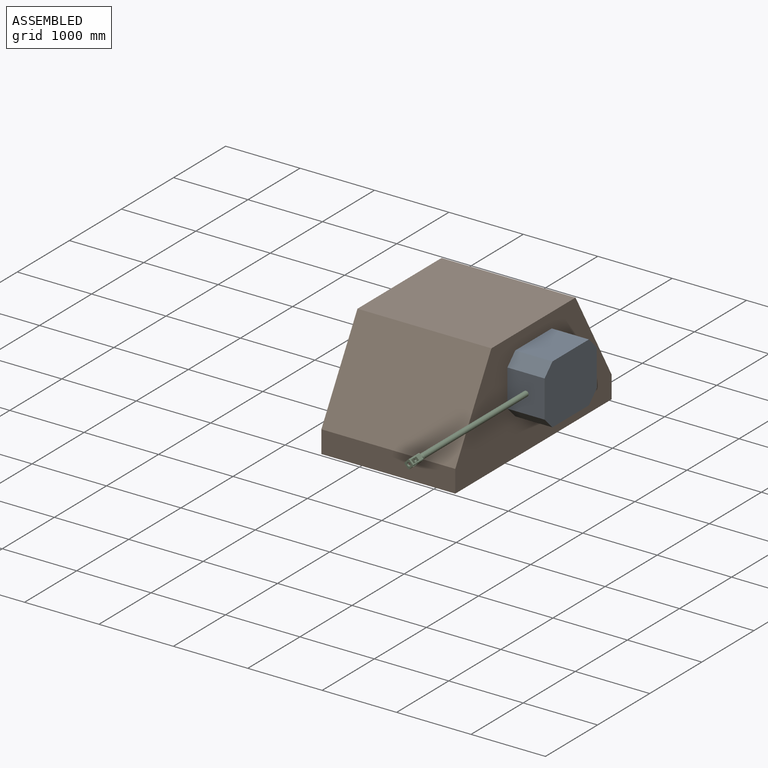
[diagram: assembled view]
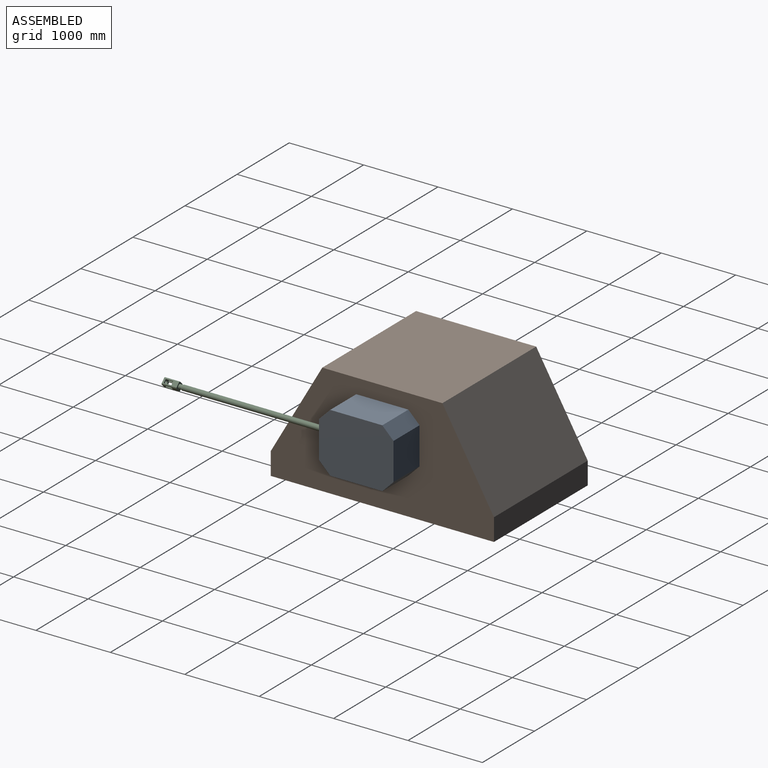
[diagram: assembled view, second angle]
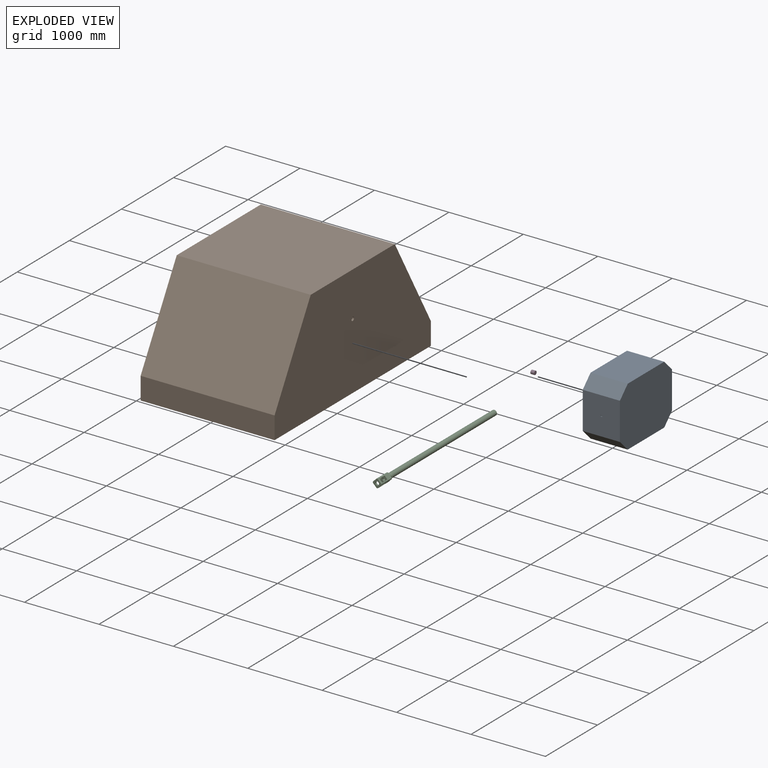
[diagram: exploded view]
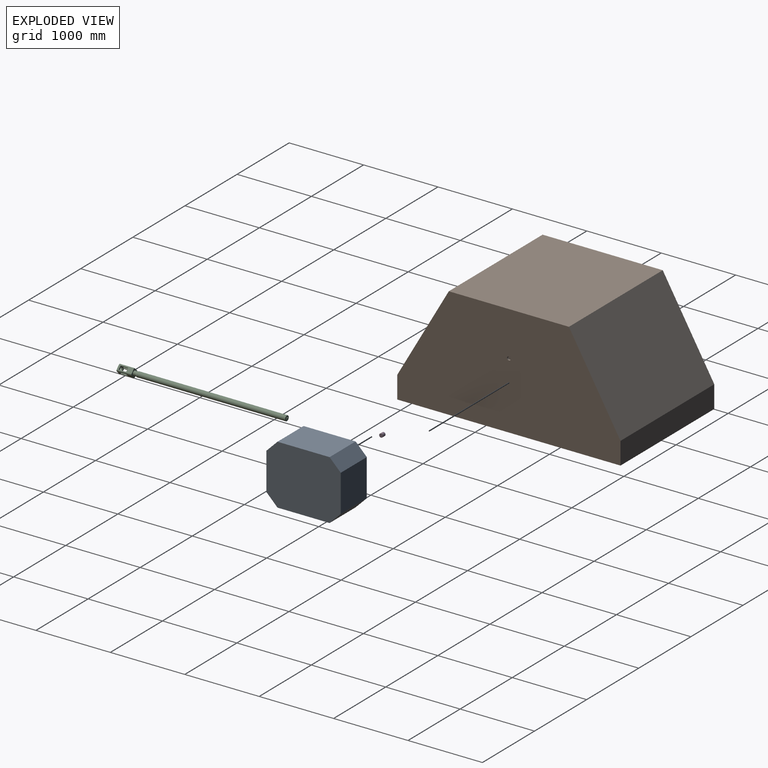
[diagram: exploded view, second angle]
ASSEMBLY  parts=4 mates=3
PART A: 17 faces, bbox 500x1000x800 mm
  f0: plane 500x500mm, normal (0,-1,0), area 249600mm2, adj f1,f7,f8,f11,f12,f13,f14,f15
  f1: plane 1000x800mm, normal (-1,0,0), area 753036.5mm2, adj f0,f2,f3,f4,f5,f8,f9,f10
  f2: plane 700x500mm, normal (0,0,1), area 350000mm2, adj f1,f7,f10,f11
  f3: plane 700x500mm, normal (0,0,-1), area 350000mm2, adj f1,f7,f8,f9
  f4: cylinder r=25mm len=50mm, axis (1,0,0), area 3927mm2, adj f1,f6
  f5: plane 500x500mm, normal (0,1,0), area 250000mm2, adj f1,f7,f9,f10
  f6: plane 50x50mm, normal (-1,0,0), area 1963.5mm2, adj f4
  f7: plane 1000x800mm, normal (1,0,0), area 755000mm2, adj f0,f2,f3,f5,f8,f9,f10,f11
  f8: plane 500x150mm, normal (0,-0.71,-0.71), area 106066mm2, adj f0,f1,f3,f7
  f9: plane 500x150mm, normal (0,0.71,-0.71), area 106066mm2, adj f1,f3,f5,f7
  f10: plane 500x150mm, normal (0,0.71,0.71), area 106066mm2, adj f1,f2,f5,f7
  f11: plane 500x150mm, normal (0,-0.71,0.71), area 106066mm2, adj f0,f1,f2,f7
  f12: plane 20x10mm, normal (0,0,-1), area 200mm2, adj f0,f13,f15,f16
  f13: plane 20x10mm, normal (1,0,0), area 200mm2, adj f0,f12,f14,f16
  f14: plane 20x10mm, normal (0,0,1), area 200mm2, adj f0,f13,f15,f16
  f15: plane 20x10mm, normal (-1,0,0), area 200mm2, adj f0,f12,f14,f16
  f16: plane 20x20mm, normal (0,-1,0), area 400mm2, adj f12,f13,f14,f15
PART B: 14 faces, bbox 1800x3000x1500 mm
  f0: plane 3000x1800mm, normal (0,0,-1), area 5398036.5mm2, adj f1,f2,f3,f4,f11
  f1: cylinder r=25mm len=50mm, axis (0,0,1), area 3927mm2, adj f0,f5
  f2: plane 1800x300mm, normal (0,-1,0), area 540000mm2, adj f0,f3,f8,f11
  f3: plane 3000x1500mm, normal (1,0,0), area 3666652.1mm2, adj f0,f2,f4,f6,f7,f8,f9
  f4: plane 1800x300mm, normal (0,1,0), area 540000mm2, adj f0,f3,f7,f11
  f5: plane 50x50mm, normal (0,0,-1), area 1963.5mm2, adj f1
  f6: plane 1800x1614.36mm, normal (0,0,1), area 2905846.8mm2, adj f3,f7,f8,f11
  f7: plane 1800x1200mm, normal (0,0.87,0.5), area 2494153.2mm2, adj f3,f4,f6,f11
  f8: plane 1800x1200mm, normal (0,-0.87,0.5), area 2494153.2mm2, adj f2,f3,f6,f11
  f9: cylinder r=25mm len=50mm, axis (1,0,0), area 3927mm2, adj f3,f10
  f10: plane 50x50mm, normal (1,0,0), area 1963.5mm2, adj f9
  f11: plane 3000x1500mm, normal (-1,0,0), area 3666652.1mm2, adj f0,f2,f4,f6,f7,f8,f12
  f12: cylinder r=25mm len=50mm, axis (-1,0,0), area 3927mm2, adj f11,f13
  f13: plane 50x50mm, normal (-1,0,0), area 1963.5mm2, adj f12
PART C: 32 faces, bbox 115.9x2260x115.9 mm
  f0: plane 200x50.86mm, normal (-0.71,0,0.71), area 9384.8mm2, adj f14,f15,f17,f20,f22,f24,f27,f28
  f1: plane 200x50.86mm, normal (0.71,0,-0.71), area 9384.8mm2, adj f14,f15,f18,f19,f22,f24,f25,f26
  f2: plane 100x14.82mm, normal (0.71,0,-0.71), area 2096.2mm2, adj f4,f22,f24,f28
  f3: plane 100x14.82mm, normal (-0.71,0,0.71), area 2096.2mm2, adj f4,f22,f24,f25
  f4: plane 200x50.86mm, normal (0.71,0,0.71), area 9384.8mm2, adj f2,f3,f14,f15,f19,f20,f22,f24
  f5: plane 200x50.86mm, normal (-0.71,0,-0.71), area 9384.8mm2, adj f14,f15,f17,f18,f21,f22,f23,f24
  f6: plane 20x10mm, normal (-1,0,0), area 200mm2, adj f7,f8,f9,f12
  f7: plane 20x20mm, normal (0,1,0), area 400mm2, adj f6,f8,f9,f10
  f8: plane 20x10mm, normal (0,0,-1), area 200mm2, adj f6,f7,f10,f12
  f9: plane 20x10mm, normal (0,0,1), area 200mm2, adj f6,f7,f10,f12
  f10: plane 20x10mm, normal (1,0,0), area 200mm2, adj f7,f8,f9,f12
  f11: cylinder r=35mm len=2000mm, axis (0,1,0), area 439823mm2, adj f12,f16
  f12: plane 70x70mm, normal (0,1,0), area 3448.5mm2, adj f6,f8,f9,f10,f11
  f13: cylinder r=30mm len=60mm, axis (0,1,0), area 7792.4mm2, adj f15,f16
  f14: plane 115.86x115.86mm, normal (0,-1,0), area 6286.5mm2, adj f0,f1,f4,f5,f17,f18,f19,f20
  f15: plane 115.86x115.86mm, normal (0,1,0), area 5422.6mm2, adj f0,f1,f4,f5,f13,f17,f18,f19
  f16: cone r=30mm half-angle=30deg, axis (0,1,0), area 2042mm2, adj f11,f13
  f17: plane 200x14.14mm, normal (-1,0,0), area 2828.4mm2, adj f0,f5,f14,f15
  f18: plane 200x14.14mm, normal (0,0,-1), area 2828.4mm2, adj f1,f5,f14,f15
  f19: plane 200x14.14mm, normal (1,0,0), area 2828.4mm2, adj f1,f4,f14,f15
  f20: plane 200x14.14mm, normal (0,0,1), area 2828.4mm2, adj f0,f4,f14,f15
  f21: plane 100x14.82mm, normal (0.71,0,-0.71), area 2096.2mm2, adj f5,f22,f24,f27
  f22: plane 100.36x100.36mm, normal (0,1,0), area 4728.9mm2, adj f0,f1,f2,f3,f4,f5,f21,f23
  f23: plane 100x14.82mm, normal (-0.71,0,0.71), area 2096.2mm2, adj f5,f22,f24,f26
  f24: plane 100.36x100.36mm, normal (0,-1,0), area 5730.3mm2, adj f0,f1,f2,f3,f4,f5,f21,f23
  f25: plane 100x14.82mm, normal (-0.71,0,-0.71), area 2096.2mm2, adj f1,f3,f22,f24
  f26: plane 100x14.82mm, normal (0.71,0,0.71), area 2096.2mm2, adj f1,f22,f23,f24
  f27: plane 100x14.82mm, normal (0.71,0,0.71), area 2096.2mm2, adj f0,f21,f22,f24
  f28: plane 100x14.82mm, normal (-0.71,0,-0.71), area 2096.2mm2, adj f0,f2,f22,f24
  f29: cylinder r=25mm len=50mm, axis (0,-1,0), area 3927mm2, adj f14,f22
  f30: cylinder r=17.5mm len=100mm, axis (0,-1,0), area 10995.6mm2, adj f24,f31
  f31: plane 35x35mm, normal (0,-1,0), area 962.1mm2, adj f30
PART D: 3 faces, bbox 50x50x50 mm
  f0: cylinder r=25mm len=50mm, axis (-1,0,0), area 7854mm2, adj f1,f2
  f1: plane 50x50mm, normal (1,0,0), area 1963.5mm2, adj f0
  f2: plane 50x50mm, normal (-1,0,0), area 1963.5mm2, adj f0
PLACE A t=(455.59,-4096.84,-586.46)mm
PLACE B t=(455.59,-4096.84,-586.46)mm
PLACE C t=(455.59,-4096.84,-586.46)mm
PLACE D t=(455.59,-4096.84,-586.46)mm
MATE fastened C.f16 <-> A.f16  axis (0,1,0) through (1605.59,-86.84,313.54)mm
MATE fastened A.f4 <-> D.f0  axis (-1,0,0) through (1380.59,403.16,313.54)mm
MATE revolute D.f0 <-> B.f9  axis (-1,0,0) through (1330.59,403.16,313.54)mm
